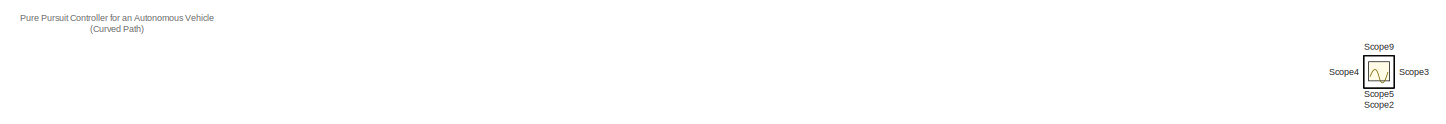
[diagram: root canvas - part 1/2, full width, top band]
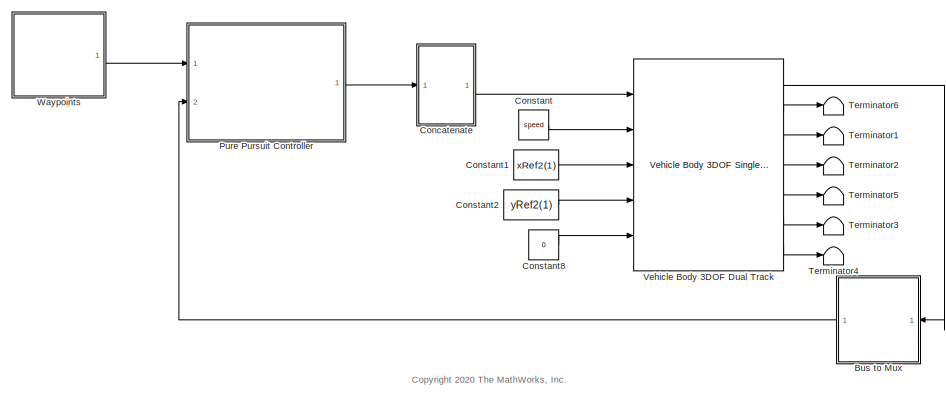
[diagram: root canvas - part 2/2, left side, full height]
MODEL slx_2dcb544ee2f4
KIND model
CONFIG AbsTol = auto
CONFIG EnableMultiTasking = off
CONFIG FixedStep = auto
CONFIG MaxStep = auto
CONFIG MinStep = auto
CONFIG PreLoadFcn = setUpPurePursuitCurveLowVel
CONFIG RelTol = 1e-3
CONFIG SampleTimeConstraint = Unconstrained
CONFIG SolverName = VariableStepAuto
CONFIG StartTime = 0.0
CONFIG StopTime = 900/speed
WORKSPACE source: mxarray member
WORKSPACE firstWarning = 0
WORKSPACE originalScenarioChecksum = 'F73A6DA3C723D3CA73A6F931B7A52A9C'
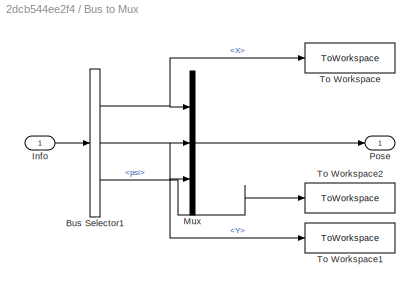
BLOCK [SubSystem] Bus to Mux
  NameLocation = top
  Ports = [1, 1]
  RequestExecContextInheritance = off
BLOCK [BusSelector] Bus to Mux/Bus Selector1
  OutputSignals = InertFrm.Cg.Disp.X,InertFrm.Cg.Disp.Y,InertFrm.Cg.Ang.psi
  Ports = [1, 3]
BLOCK [Inport] Bus to Mux/Info
BLOCK [Mux] Bus to Mux/Mux
  DisplayOption = bar
  Inputs = 3
  Ports = [3, 1]
BLOCK [Outport] Bus to Mux/Pose
BLOCK [ToWorkspace] Bus to Mux/To Workspace
  FixptAsFi = on
  MaxDataPoints = inf
  Ports = [1]
  SampleTime = -1
  VariableName = x_track
BLOCK [ToWorkspace] Bus to Mux/To Workspace1
  FixptAsFi = on
  MaxDataPoints = inf
  Ports = [1]
  SampleTime = -1
  VariableName = y_track
BLOCK [ToWorkspace] Bus to Mux/To Workspace2
  FixptAsFi = on
  MaxDataPoints = inf
  Ports = [1]
  SampleTime = -1
  VariableName = yaw
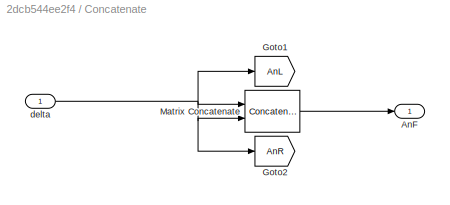
BLOCK [SubSystem] Concatenate
  Ports = [1, 1]
  RequestExecContextInheritance = off
BLOCK [Outport] Concatenate/AnF
  VectorParamsAs1DForOutWhenUnconnected = off
BLOCK [Goto] Concatenate/Goto1
  GotoTag = AnL
  TagVisibility = global
BLOCK [Goto] Concatenate/Goto2
  GotoTag = AnR
  TagVisibility = global
BLOCK [Concatenate] Concatenate/Matrix Concatenate
  Ports = [2, 1]
BLOCK [Inport] Concatenate/delta
BLOCK [Constant] Constant
  Value = speed
BLOCK [Constant] Constant1
  Value = xRef2(1)
BLOCK [Constant] Constant2
  Value = yRef2(1)
BLOCK [Constant] Constant8
  Value = 0
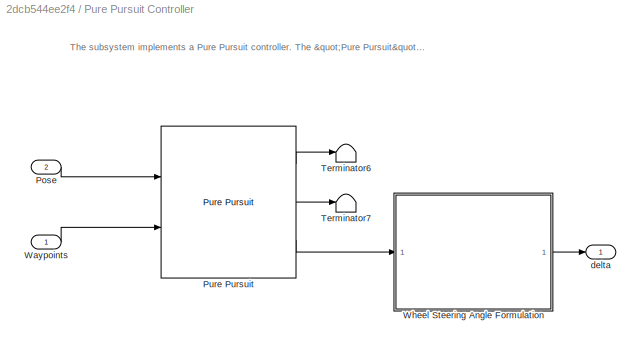
BLOCK [SubSystem] Pure Pursuit Controller
  Ports = [2, 1]
  RequestExecContextInheritance = off
BLOCK [Inport] Pure Pursuit Controller/Pose
  Port = 2
BLOCK [Reference] Pure Pursuit Controller/Pure Pursuit  REF=robotalgslib/Pure Pursuit
  Ports = [2, 3]
  SourceBlock = robotalgslib/Pure Pursuit
  SourceProductBaseCode = NV,RO
  SourceType = nav.slalgs.internal.PurePursuit
BLOCK [Terminator] Pure Pursuit Controller/Terminator6
BLOCK [Terminator] Pure Pursuit Controller/Terminator7
BLOCK [Inport] Pure Pursuit Controller/Waypoints
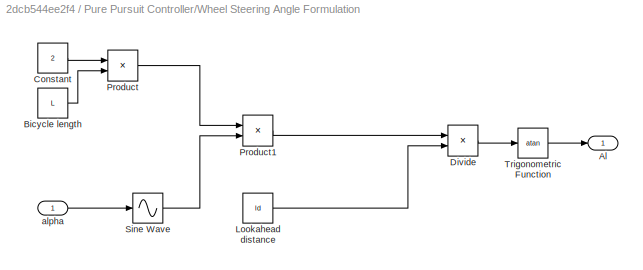
BLOCK [SubSystem] Pure Pursuit Controller/Wheel Steering Angle Formulation
  Ports = [1, 1]
  RequestExecContextInheritance = off
BLOCK [Outport] Pure Pursuit Controller/Wheel Steering Angle Formulation/Al
BLOCK [Constant] Pure Pursuit Controller/Wheel Steering Angle Formulation/Bicycle length
  Value = L
BLOCK [Constant] Pure Pursuit Controller/Wheel Steering Angle Formulation/Constant
  Value = 2
BLOCK [Product] Pure Pursuit Controller/Wheel Steering Angle Formulation/Divide
  Inputs = */
  Ports = [2, 1]
BLOCK [Constant] Pure Pursuit Controller/Wheel Steering Angle Formulation/Lookahead distance
  Value = ld
BLOCK [Product] Pure Pursuit Controller/Wheel Steering Angle Formulation/Product
  Ports = [2, 1]
BLOCK [Product] Pure Pursuit Controller/Wheel Steering Angle Formulation/Product1
  Ports = [2, 1]
BLOCK [Sin] Pure Pursuit Controller/Wheel Steering Angle Formulation/Sine Wave
  Ports = [1, 1]
  SampleTime = 0
  TimeSource = Use external signal
BLOCK [Trigonometry] Pure Pursuit Controller/Wheel Steering Angle Formulation/Trigonometric Function
  Operator = atan
  Ports = [1, 1]
BLOCK [Inport] Pure Pursuit Controller/Wheel Steering Angle Formulation/alpha
  NameLocation = top
BLOCK [Outport] Pure Pursuit Controller/delta
BLOCK [Scope] Scope
  Floating = off
  IOType = viewer
  NumInputPorts = 1
  Ports = []
  ScopeSpecificationString = Simulink.scopes.TimeScopeBlockCfg('CurrentConfiguration', extmgr.ConfigurationSet(extmgr.Configuration('Core','General UI',true),extmgr.Configuration('Core','Source UI',true),extmgr.Configuration('Sources','WiredSimulink',true),extmgr.Configuration('Visuals','Time Domain',true,'SerializedDisplays',{struct('MinYLimReal','-0.82942','MaxYLimReal','5.64771','YLabelReal','','MinYLimMag','0.00000','MaxY...<+1345ch>
BLOCK [Scope] Scope1
  Floating = off
  IOType = viewer
  NumInputPorts = 1
  Ports = []
  ScopeSpecificationString = Simulink.scopes.TimeScopeBlockCfg('CurrentConfiguration', extmgr.ConfigurationSet(extmgr.Configuration('Core','General UI',true),extmgr.Configuration('Core','Source UI',true),extmgr.Configuration('Sources','WiredSimulink',true,'DataLoggingVariableName','ScopeData1'),extmgr.Configuration('Visuals','Time Domain',true,'SerializedDisplays',{struct('MinYLimReal','-0.24179','MaxYLimReal','0.3591','YLabe...<+1384ch>
BLOCK [Scope] Scope2
  Floating = off
  IOType = viewer
  NumInputPorts = 1
  Ports = []
  ScopeSpecificationString = Simulink.scopes.TimeScopeBlockCfg('CurrentConfiguration', extmgr.ConfigurationSet(extmgr.Configuration('Core','General UI',true),extmgr.Configuration('Core','Source UI',true),extmgr.Configuration('Sources','WiredSimulink',true,'DataLoggingVariableName','ScopeData2'),extmgr.Configuration('Visuals','Time Domain',true,'SerializedDisplays',{struct('MinYLimReal','9.00000','MaxYLimReal','11.00000','YLab...<+1416ch>
BLOCK [Scope] Scope3
  Floating = off
  IOType = viewer
  NumInputPorts = 1
  Ports = []
  ScopeSpecificationString = Simulink.scopes.TimeScopeBlockCfg('CurrentConfiguration', extmgr.ConfigurationSet(extmgr.Configuration('Core','General UI',true),extmgr.Configuration('Core','Source UI',true),extmgr.Configuration('Sources','WiredSimulink',true,'DataLoggingVariableName','ScopeData1'),extmgr.Configuration('Visuals','Time Domain',true,'SerializedDisplays',{struct('MinYLimReal','-0.71654','MaxYLimReal','0.7388','YLabe...<+1465ch>
BLOCK [Scope] Scope4
  Floating = off
  IOType = viewer
  NumInputPorts = 1
  Ports = []
  ScopeSpecificationString = Simulink.scopes.TimeScopeBlockCfg('CurrentConfiguration', extmgr.ConfigurationSet(extmgr.Configuration('Core','General UI',true),extmgr.Configuration('Core','Source UI',true),extmgr.Configuration('Sources','WiredSimulink',true,'DataLoggingVariableName','ScopeData1'),extmgr.Configuration('Visuals','Time Domain',true,'SerializedDisplays',{struct('MinYLimReal','-0.125','MaxYLimReal','1.125','YLabelRe...<+1388ch>
BLOCK [Scope] Scope5
  Floating = off
  IOType = viewer
  NumInputPorts = 1
  Ports = []
  ScopeSpecificationString = Simulink.scopes.TimeScopeBlockCfg('CurrentConfiguration', extmgr.ConfigurationSet(extmgr.Configuration('Core','General UI',true),extmgr.Configuration('Core','Source UI',true),extmgr.Configuration('Sources','WiredSimulink',true,'DataLoggingVariableName','ScopeData2'),extmgr.Configuration('Visuals','Time Domain',true,'SerializedDisplays',{struct('MinYLimReal','-1.00000','MaxYLimReal','1.00000','YLab...<+1400ch>
BLOCK [Scope] Scope9
  Floating = off
  IOType = viewer
  NumInputPorts = 1
  Ports = []
  ScopeSpecificationString = Simulink.scopes.TimeScopeBlockCfg('CurrentConfiguration', extmgr.ConfigurationSet(extmgr.Configuration('Core','General UI',true),extmgr.Configuration('Core','Source UI',true),extmgr.Configuration('Sources','WiredSimulink',true,'DataLoggingVariableName','ScopeData1'),extmgr.Configuration('Visuals','Time Domain',true,'SerializedDisplays',{struct('MinYLimReal','-1.40832','MaxYLimReal','0.29157','YLab...<+1449ch>
BLOCK [Terminator] Terminator1
BLOCK [Terminator] Terminator2
BLOCK [Terminator] Terminator3
BLOCK [Terminator] Terminator4
BLOCK [Terminator] Terminator5
BLOCK [Terminator] Terminator6
BLOCK [Reference] Vehicle Body 3DOF Dual Track  REF=autolibshared/Vehicle Body 3DOF Single Track
  Ports = [5, 7]
  SourceBlock = autolibshared/Vehicle Body 3DOF Single Track
  SourceProductBaseCode = PW,DR,MT,UV,VE
  SourceType = Vehicle Body 3DOF Lateral
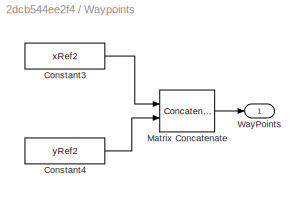
BLOCK [SubSystem] Waypoints
  Ports = [0, 1]
  RequestExecContextInheritance = off
BLOCK [Constant] Waypoints/Constant3
  SampleTime = 0.1
  Value = xRef2
BLOCK [Constant] Waypoints/Constant4
  SampleTime = 0.1
  Value = yRef2
BLOCK [Concatenate] Waypoints/Matrix Concatenate
  ConcatenateDimension = 2
  Mode = Multidimensional array
  Ports = [2, 1]
BLOCK [Outport] Waypoints/WayPoints
ANNOTATION (root): Pure Pursuit Controller for an Autonomous Vehicle (Curved Path)
ANNOTATION (root): <copyright redacted>
ANNOTATION Pure Pursuit Controller: The subsystem implements a Pure Pursuit controller. The "Pure Pursuit" block calculates the target direction and the "Wheel Steering Angle Formulation" block calculates the wheel steering angle.
NET Bus to Mux/Bus Selector1:1 -> Bus to Mux/Mux:1, Bus to Mux/To Workspace:1
NET Bus to Mux/Bus Selector1:2 -> Bus to Mux/Mux:2, Bus to Mux/To Workspace1:1
NET Bus to Mux/Bus Selector1:3 -> Bus to Mux/Mux:3, Bus to Mux/To Workspace2:1
LINE Bus to Mux/Info:1 -> Bus to Mux/Bus Selector1:1
LINE Bus to Mux/Mux:1 -> Bus to Mux/Pose:1
LINE Bus to Mux:1 -> Pure Pursuit Controller:2
LINE Concatenate/Matrix Concatenate:1 -> Concatenate/AnF:1
NET Concatenate/delta:1 -> Concatenate/Goto1:1, Concatenate/Goto2:1, Concatenate/Matrix Concatenate:1, Concatenate/Matrix Concatenate:2
LINE Concatenate:1 -> Vehicle Body 3DOF Dual Track:1
LINE Constant1:1 -> Vehicle Body 3DOF Dual Track:3
LINE Constant2:1 -> Vehicle Body 3DOF Dual Track:4
LINE Constant8:1 -> Vehicle Body 3DOF Dual Track:5
LINE Constant:1 -> Vehicle Body 3DOF Dual Track:2
LINE Pure Pursuit Controller/Pose:1 -> Pure Pursuit Controller/Pure Pursuit:1
LINE Pure Pursuit Controller/Pure Pursuit:1 -> Pure Pursuit Controller/Terminator6:1
LINE Pure Pursuit Controller/Pure Pursuit:2 -> Pure Pursuit Controller/Terminator7:1
LINE Pure Pursuit Controller/Pure Pursuit:3 -> Pure Pursuit Controller/Wheel Steering Angle Formulation:1
LINE Pure Pursuit Controller/Waypoints:1 -> Pure Pursuit Controller/Pure Pursuit:2
LINE Pure Pursuit Controller/Wheel Steering Angle Formulation/Bicycle length:1 -> Pure Pursuit Controller/Wheel Steering Angle Formulation/Product:2
LINE Pure Pursuit Controller/Wheel Steering Angle Formulation/Constant:1 -> Pure Pursuit Controller/Wheel Steering Angle Formulation/Product:1
LINE Pure Pursuit Controller/Wheel Steering Angle Formulation/Divide:1 -> Pure Pursuit Controller/Wheel Steering Angle Formulation/Trigonometric Function:1
LINE Pure Pursuit Controller/Wheel Steering Angle Formulation/Lookahead distance:1 -> Pure Pursuit Controller/Wheel Steering Angle Formulation/Divide:2
LINE Pure Pursuit Controller/Wheel Steering Angle Formulation/Product1:1 -> Pure Pursuit Controller/Wheel Steering Angle Formulation/Divide:1
LINE Pure Pursuit Controller/Wheel Steering Angle Formulation/Product:1 -> Pure Pursuit Controller/Wheel Steering Angle Formulation/Product1:1
LINE Pure Pursuit Controller/Wheel Steering Angle Formulation/Sine Wave:1 -> Pure Pursuit Controller/Wheel Steering Angle Formulation/Product1:2
LINE Pure Pursuit Controller/Wheel Steering Angle Formulation/Trigonometric Function:1 -> Pure Pursuit Controller/Wheel Steering Angle Formulation/Al:1
LINE Pure Pursuit Controller/Wheel Steering Angle Formulation/alpha:1 -> Pure Pursuit Controller/Wheel Steering Angle Formulation/Sine Wave:1
LINE Pure Pursuit Controller/Wheel Steering Angle Formulation:1 -> Pure Pursuit Controller/delta:1
LINE Pure Pursuit Controller:1 -> Concatenate:1
LINE Vehicle Body 3DOF Dual Track:1 -> Bus to Mux:1
LINE Vehicle Body 3DOF Dual Track:2 -> Terminator6:1
LINE Vehicle Body 3DOF Dual Track:3 -> Terminator1:1
LINE Vehicle Body 3DOF Dual Track:4 -> Terminator2:1
LINE Vehicle Body 3DOF Dual Track:5 -> Terminator5:1
LINE Vehicle Body 3DOF Dual Track:6 -> Terminator3:1
LINE Vehicle Body 3DOF Dual Track:7 -> Terminator4:1
LINE Waypoints/Constant3:1 -> Waypoints/Matrix Concatenate:1
LINE Waypoints/Constant4:1 -> Waypoints/Matrix Concatenate:2
LINE Waypoints/Matrix Concatenate:1 -> Waypoints/WayPoints:1
LINE Waypoints:1 -> Pure Pursuit Controller:1
note: NET lines group one-source signal fan-out (src -> all destinations, sorted); 1:1 wires keep LINE
